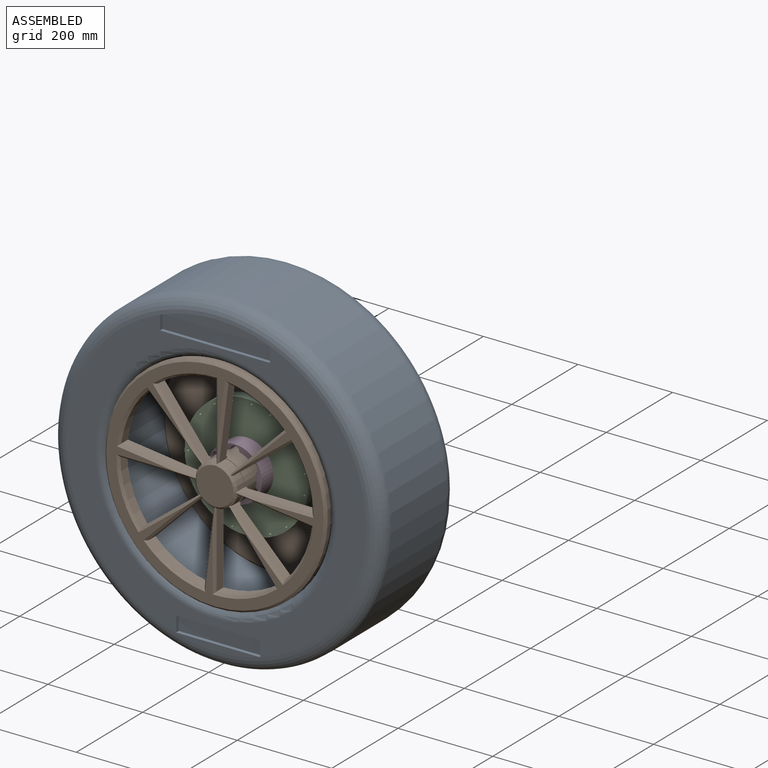
[diagram: assembled view]
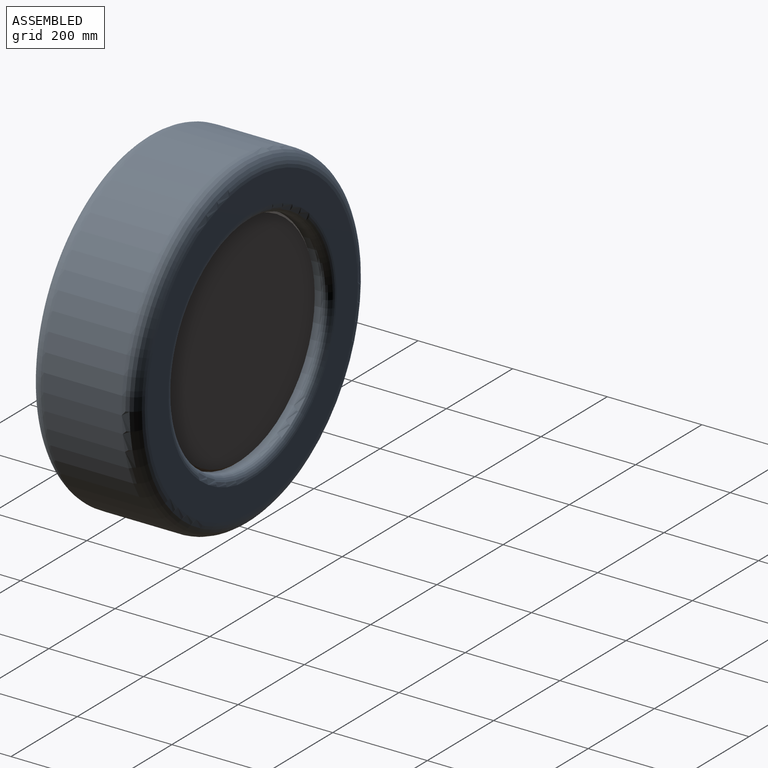
[diagram: assembled view, second angle]
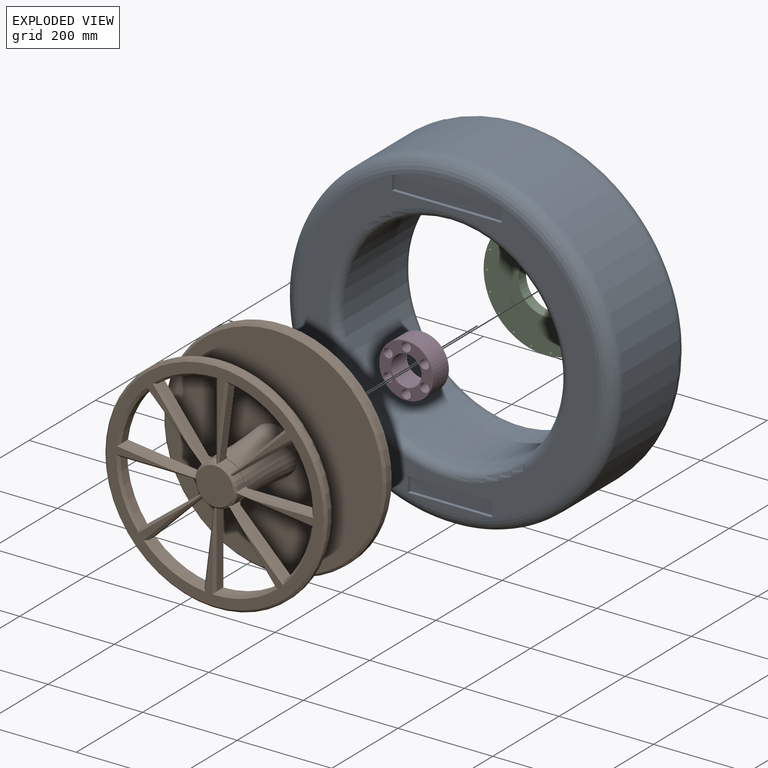
[diagram: exploded view]
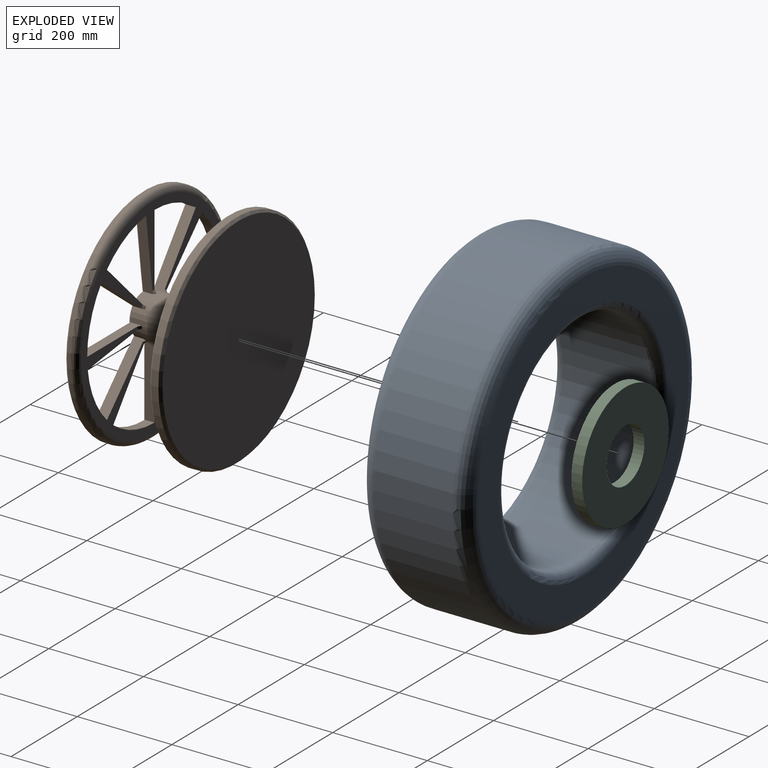
[diagram: exploded view, second angle]
ASSEMBLY  parts=4 mates=4
PART A: 29 faces, bbox 756.1x228.6x756.1 mm
  f0: plane 12.19x7.62mm, normal (0,0,-1), area 92.9mm2, adj f3,f17,f21,f22
  f1: plane 24.38x7.62mm, normal (0,0,-1), area 185.8mm2, adj f3,f17,f19,f20
  f2: plane 67.39x7.62mm, normal (0,0,-1), area 513.5mm2, adj f3,f14,f17,f18
  f3: plane 227.09x21.01mm, normal (0,-1,0), area 3200mm2, adj f0,f1,f2,f8,f13,f18,f19,f20
  f4: plane 635x635mm, normal (0,1,0), area 114009.2mm2, adj f7,f11
  f5: cylinder r=349.25mm len=698.5mm, axis (0,1,0), area 362295.8mm2, adj f7,f8
  f6: plane 635x614mm, normal (0,-1,0), area 97735.2mm2, adj f8,f10,f12,f15,f16,f24,f25,f26
  f7: torus R=317.5mm, axis (0,1,0), area 105825.6mm2, adj f4,f5
  f8: torus R=317.5mm, axis (0,1,0), area 105825.6mm2, adj f3,f5,f6,f14
  f9: cylinder r=234.95mm len=469.9mm, axis (0,-1,0), area 281222.7mm2, adj f10,f11
  f10: torus R=254mm, axis (0,1,0), area 45475.9mm2, adj f6,f9
  f11: torus R=254mm, axis (0,1,0), area 45475.9mm2, adj f4,f9
  f12: plane 31.99x7.62mm, normal (-1,0,0), area 243.7mm2, adj f6,f13,f16,f17
  f13: plane 114.39x7.62mm, normal (0,0,-1), area 871.6mm2, adj f3,f12,f17,f23
  f14: cylinder r=317.5mm len=7.62mm, axis (0,-1,0), area 41mm2, adj f2,f8,f15,f17
  f15: plane 30.02x7.62mm, normal (1,0,0), area 228.7mm2, adj f6,f14,f16,f17
  f16: plane 232.1x7.62mm, normal (0,0,1), area 1768.6mm2, adj f6,f12,f15,f17
  f17: plane 232.1x32.12mm, normal (0,-1,0), area 7419.7mm2, adj f0,f1,f2,f12,f13,f14,f15,f16
  f18: extruded ~7.62x1.43mm, area 10.9mm2, adj f2,f3,f17,f19
  f19: extruded ~7.62x1.72mm, area 13.1mm2, adj f1,f3,f17,f18
  f20: extruded ~7.62x1.45mm, area 11.1mm2, adj f1,f3,f17,f21
  f21: extruded ~7.62x1.46mm, area 11.2mm2, adj f0,f3,f17,f20
  f22: extruded ~7.62x1.37mm, area 10.5mm2, adj f0,f3,f17,f23
  f23: extruded ~7.62x1.32mm, area 10.1mm2, adj f3,f13,f17,f22
  f24: plane 31.83x7.62mm, normal (-1,0,0), area 242.5mm2, adj f6,f25,f27,f28
  f25: plane 177.64x7.62mm, normal (0,0,-1), area 1353.6mm2, adj f6,f24,f26,f28
  f26: plane 31.83x7.62mm, normal (1,0,0), area 242.5mm2, adj f6,f25,f27,f28
  f27: plane 177.64x7.62mm, normal (0,0,1), area 1353.6mm2, adj f6,f24,f26,f28
  f28: plane 177.64x31.83mm, normal (0,-1,0), area 5654.3mm2, adj f24,f25,f26,f27
PART B: 101 faces, bbox 521.2x955.7x521.2 mm
  f0: plane 78.74x78.74mm, normal (0,1,0), area 4869.5mm2, adj f53,f54,f57,f58,f63,f64,f67,f68
  f1: plane 459.74x459.74mm, normal (0,1,0), area 37810.4mm2, adj f49,f50,f51,f52,f55,f56,f59,f60
  f2: plane 444.5x444.5mm, normal (0,-1,0), area 44855mm2, adj f8,f10,f12,f13,f16,f17,f18,f20
  f3: cylinder r=234.95mm len=469.9mm, axis (0,1,0), area 22497.8mm2, adj f98,f99
  f4: plane 459.74x459.74mm, normal (0,-1,0), area 166002.4mm2, adj f99
  f5: plane 459.74x459.74mm, normal (0,1,0), area 157935.8mm2, adj f98,f100
  f6: cylinder r=45.59mm len=91.18mm, axis (0,-1,0), area 19782.7mm2, adj f9,f10,f12,f14,f16,f18,f19,f20
  f7: cylinder r=234.95mm len=469.9mm, axis (0,1,0), area 11248.9mm2, adj f8,f89
  f8: torus R=222.25mm, axis (0,-1,0), area 28871.1mm2, adj f2,f7
  f9: plane 26.68x13.8mm, normal (0,1,0), area 33.9mm2, adj f6,f10,f11,f12
  f10: plane 112.25x112.25mm, normal (-0.71,0,-0.71), area 3238.7mm2, adj f2,f6,f9,f11,f13,f52,f95
  f11: cylinder r=44.45mm len=25.87mm, axis (0,1,0), area 596.2mm2, adj f9,f10,f12,f57
  f12: plane 157.51x25.4mm, normal (0.99,0,0.12), area 3238.7mm2, adj f2,f6,f9,f11,f13,f56,f96
  f13: cylinder r=203.2mm len=118.28mm, axis (0,1,0), area 2725.4mm2, adj f2,f10,f12,f51
  f14: plane 27.97x10.49mm, normal (0,1,0), area 34mm2, adj f6,f15,f16,f18
  f15: cylinder r=44.45mm len=27.26mm, axis (0,1,0), area 596.4mm2, adj f14,f16,f18,f54
  f16: plane 125.38x97.37mm, normal (0.61,0,0.79), area 3238.7mm2, adj f2,f6,f14,f15,f17,f49,f95
  f17: cylinder r=203.2mm len=124.64mm, axis (0,1,0), area 2726.5mm2, adj f2,f16,f18,f50
  f18: plane 158.75x25.4mm, normal (0,0,-1), area 3238.7mm2, adj f2,f6,f14,f15,f17,f55,f94
  f19: plane 26.68x13.8mm, normal (0,1,0), area 33.9mm2, adj f6,f20,f21,f22
  f20: plane 112.25x112.25mm, normal (0.71,0,-0.71), area 3238.7mm2, adj f2,f6,f19,f21,f23,f65,f93
  f21: cylinder r=44.45mm len=25.87mm, axis (0,1,0), area 596.2mm2, adj f19,f20,f22,f64
  f22: plane 157.51x25.4mm, normal (-0.12,0,0.99), area 3238.7mm2, adj f2,f6,f19,f21,f23,f59,f94
  f23: cylinder r=203.2mm len=118.28mm, axis (0,1,0), area 2725.4mm2, adj f2,f20,f22,f60
  f24: plane 27.97x10.49mm, normal (0,1,0), area 34mm2, adj f6,f25,f26,f28
  f25: cylinder r=44.45mm len=27.26mm, axis (0,1,0), area 596.4mm2, adj f24,f26,f28,f67
  f26: plane 125.38x97.37mm, normal (0.79,0,-0.61), area 3238.7mm2, adj f2,f6,f24,f25,f27,f66,f97
  f27: cylinder r=203.2mm len=124.64mm, axis (0,1,0), area 2726.5mm2, adj f2,f26,f28,f61
  f28: plane 158.75x25.4mm, normal (-1,0,0), area 3238.7mm2, adj f2,f6,f24,f25,f27,f62,f96
  f29: plane 27.97x10.49mm, normal (0,1,0), area 34mm2, adj f6,f31,f32,f33
  f30: cylinder r=203.2mm len=124.64mm, axis (0,1,0), area 2726.5mm2, adj f2,f31,f33,f70
  f31: plane 158.75x25.4mm, normal (1,0,0), area 3238.7mm2, adj f2,f6,f29,f30,f32,f75,f92
  f32: cylinder r=44.45mm len=27.26mm, axis (0,1,0), area 596.4mm2, adj f29,f31,f33,f74
  f33: plane 125.38x97.37mm, normal (-0.79,0,0.61), area 3238.7mm2, adj f2,f6,f29,f30,f32,f69,f93
  f34: plane 26.68x13.8mm, normal (0,1,0), area 33.9mm2, adj f6,f35,f36,f37
  f35: plane 112.25x112.25mm, normal (0.71,0,0.71), area 3238.7mm2, adj f2,f6,f34,f36,f38,f82,f91
  f36: cylinder r=44.45mm len=25.87mm, axis (0,1,0), area 596.2mm2, adj f34,f35,f37,f86
  f37: plane 157.51x25.4mm, normal (-0.99,0,-0.12), area 3238.7mm2, adj f2,f6,f34,f36,f38,f81,f92
  f38: cylinder r=203.2mm len=118.28mm, axis (0,1,0), area 2725.4mm2, adj f2,f35,f37,f76
  f39: plane 26.68x13.8mm, normal (0,1,0), area 33.9mm2, adj f6,f40,f41,f42
  f40: plane 112.25x112.25mm, normal (-0.71,0,0.71), area 3238.7mm2, adj f2,f6,f39,f41,f43,f72,f97
  f41: cylinder r=44.45mm len=25.87mm, axis (0,1,0), area 596.2mm2, adj f39,f40,f42,f79
  f42: plane 157.51x25.4mm, normal (0.12,0,-0.99), area 3238.7mm2, adj f2,f6,f39,f41,f43,f78,f90
  f43: cylinder r=203.2mm len=118.28mm, axis (0,1,0), area 2725.4mm2, adj f2,f40,f42,f71
  f44: plane 27.97x10.49mm, normal (0,1,0), area 34mm2, adj f6,f45,f46,f47
  f45: plane 158.75x25.4mm, normal (0,0,1), area 3238.7mm2, adj f2,f6,f44,f46,f48,f84,f90
  f46: cylinder r=44.45mm len=27.26mm, axis (0,1,0), area 596.4mm2, adj f44,f45,f47,f87
  f47: plane 125.38x97.37mm, normal (-0.61,0,-0.79), area 3238.7mm2, adj f2,f6,f44,f46,f48,f83,f91
  f48: cylinder r=203.2mm len=124.64mm, axis (0,1,0), area 2726.5mm2, adj f2,f45,f47,f77
  f49: plane 130.02x104.52mm, normal (0.43,0.71,0.56), area 1104.3mm2, adj f1,f16,f50,f52,f54
  f50: cone r=208.28mm half-angle=45deg, axis (0,1,0), area 1012.2mm2, adj f1,f17,f49,f55
  f51: cone r=208.28mm half-angle=45deg, axis (0,1,0), area 1011.8mm2, adj f1,f13,f52,f56
  f52: plane 119.51x116.07mm, normal (-0.5,0.71,-0.5), area 1104.3mm2, adj f1,f10,f49,f51,f57
  f53: cone r=44.45mm half-angle=45deg, axis (0,-1,0), area 9.2mm2, adj f0,f54,f57
  f54: cone r=44.45mm half-angle=45deg, axis (0,-1,0), area 217.1mm2, adj f0,f15,f49,f53,f55,f58
  f55: plane 166.53x5.13mm, normal (0,0.71,-0.71), area 1104.7mm2, adj f1,f18,f50,f54,f59
  f56: plane 165.53x22.84mm, normal (0.7,0.71,0.09), area 1104.7mm2, adj f1,f12,f51,f57,f62
  f57: cone r=44.45mm half-angle=45deg, axis (0,-1,0), area 217mm2, adj f0,f11,f52,f53,f56,f63
  f58: cone r=44.45mm half-angle=45deg, axis (0,-1,0), area 9.1mm2, adj f0,f54,f64
  f59: plane 165.53x22.84mm, normal (-0.09,0.71,0.7), area 1104.7mm2, adj f1,f22,f55,f60,f64
  f60: cone r=208.28mm half-angle=45deg, axis (0,1,0), area 1011.8mm2, adj f1,f23,f59,f65
  f61: cone r=208.28mm half-angle=45deg, axis (0,1,0), area 1012.2mm2, adj f1,f27,f62,f66
  f62: plane 166.53x5.13mm, normal (-0.71,0.71,0), area 1104.7mm2, adj f1,f28,f56,f61,f67
  f63: cone r=44.45mm half-angle=45deg, axis (0,-1,0), area 9.1mm2, adj f0,f57,f67
  f64: cone r=44.45mm half-angle=45deg, axis (0,-1,0), area 217mm2, adj f0,f21,f58,f59,f65,f68
  f65: plane 119.51x116.07mm, normal (0.5,0.71,-0.5), area 1104.3mm2, adj f1,f20,f60,f64,f69
  f66: plane 130.02x104.52mm, normal (0.56,0.71,-0.43), area 1104.3mm2, adj f1,f26,f61,f67,f72
  f67: cone r=44.45mm half-angle=45deg, axis (0,-1,0), area 217.1mm2, adj f0,f25,f62,f63,f66,f73
  f68: cone r=44.45mm half-angle=45deg, axis (0,-1,0), area 9.2mm2, adj f0,f64,f74
  f69: plane 130.02x104.52mm, normal (-0.56,0.71,0.43), area 1104.3mm2, adj f1,f33,f65,f70,f74
  f70: cone r=208.28mm half-angle=45deg, axis (0,1,0), area 1012.2mm2, adj f1,f30,f69,f75
  f71: cone r=208.28mm half-angle=45deg, axis (0,1,0), area 1011.8mm2, adj f1,f43,f72,f78
  f72: plane 119.51x116.07mm, normal (-0.5,0.71,0.5), area 1104.3mm2, adj f1,f40,f66,f71,f79
  f73: cone r=44.45mm half-angle=45deg, axis (0,-1,0), area 9.2mm2, adj f0,f67,f79
  f74: cone r=44.45mm half-angle=45deg, axis (0,-1,0), area 217.1mm2, adj f0,f32,f68,f69,f75,f80
  f75: plane 166.53x5.13mm, normal (0.71,0.71,0), area 1104.7mm2, adj f1,f31,f70,f74,f81
  f76: cone r=208.28mm half-angle=45deg, axis (0,1,0), area 1011.8mm2, adj f1,f38,f81,f82
  f77: cone r=208.28mm half-angle=45deg, axis (0,1,0), area 1012.2mm2, adj f1,f48,f83,f84
  f78: plane 165.53x22.84mm, normal (0.09,0.71,-0.7), area 1104.7mm2, adj f1,f42,f71,f79,f84
  f79: cone r=44.45mm half-angle=45deg, axis (0,-1,0), area 217mm2, adj f0,f41,f72,f73,f78,f85
  f80: cone r=44.45mm half-angle=45deg, axis (0,-1,0), area 9.1mm2, adj f0,f74,f86
  f81: plane 165.53x22.84mm, normal (-0.7,0.71,-0.09), area 1104.7mm2, adj f1,f37,f75,f76,f86
  f82: plane 119.51x116.07mm, normal (0.5,0.71,0.5), area 1104.3mm2, adj f1,f35,f76,f83,f86
  f83: plane 130.02x104.52mm, normal (-0.43,0.71,-0.56), area 1104.3mm2, adj f1,f47,f77,f82,f87
  f84: plane 166.53x5.13mm, normal (0,0.71,0.71), area 1104.7mm2, adj f1,f45,f77,f78,f87
  f85: cone r=44.45mm half-angle=45deg, axis (0,-1,0), area 9.1mm2, adj f0,f79,f87
  f86: cone r=44.45mm half-angle=45deg, axis (0,-1,0), area 217mm2, adj f0,f36,f80,f81,f82,f88
  f87: cone r=44.45mm half-angle=45deg, axis (0,-1,0), area 217.1mm2, adj f0,f46,f83,f84,f85,f88
  f88: cone r=44.45mm half-angle=45deg, axis (0,-1,0), area 9.2mm2, adj f0,f86,f87
  f89: cone r=234.95mm half-angle=45deg, axis (0,-1,0), area 10490.9mm2, adj f1,f7
  f90: cone r=45.59mm half-angle=45deg, axis (0,1,0), area 43.3mm2, adj f2,f6,f42,f45
  f91: cone r=45.59mm half-angle=45deg, axis (0,1,0), area 43.3mm2, adj f2,f6,f35,f47
  f92: cone r=45.59mm half-angle=45deg, axis (0,1,0), area 43.3mm2, adj f2,f6,f31,f37
  f93: cone r=45.59mm half-angle=45deg, axis (0,1,0), area 43.3mm2, adj f2,f6,f20,f33
  f94: cone r=45.59mm half-angle=45deg, axis (0,1,0), area 43.3mm2, adj f2,f6,f18,f22
  f95: cone r=45.59mm half-angle=45deg, axis (0,1,0), area 43.3mm2, adj f2,f6,f10,f16
  f96: cone r=45.59mm half-angle=45deg, axis (0,1,0), area 43.3mm2, adj f2,f6,f12,f28
  f97: cone r=45.59mm half-angle=45deg, axis (0,1,0), area 43.3mm2, adj f2,f6,f26,f40
  f98: cone r=229.87mm half-angle=45deg, axis (0,-1,0), area 10490.9mm2, adj f3,f5
  f99: cone r=229.87mm half-angle=45deg, axis (0,1,0), area 10490.9mm2, adj f3,f4
  f100: torus R=718.56mm, axis (0,-1,0), area 24583mm2, adj f5,f6
PART C: 42 faces, bbox 261.7x23x261.7 mm
  f0: cylinder r=2.35mm len=11.49mm, axis (0,1,0), area 169.5mm2, adj f21,f23
  f1: cylinder r=2.35mm len=11.49mm, axis (0,1,0), area 169.5mm2, adj f21,f24
  f2: cylinder r=2.35mm len=11.49mm, axis (0,1,0), area 169.5mm2, adj f21,f25
  f3: cylinder r=2.35mm len=11.49mm, axis (0,1,0), area 169.5mm2, adj f21,f26
  f4: cylinder r=2.35mm len=11.49mm, axis (0,1,0), area 169.5mm2, adj f21,f27
  f5: cylinder r=2.35mm len=11.49mm, axis (0,1,0), area 169.5mm2, adj f21,f28
  f6: cylinder r=2.35mm len=11.49mm, axis (0,1,0), area 169.5mm2, adj f21,f29
  f7: cylinder r=2.35mm len=11.49mm, axis (0,1,0), area 169.5mm2, adj f21,f30
  f8: cylinder r=2.35mm len=11.49mm, axis (0,1,0), area 169.5mm2, adj f21,f31
  f9: cylinder r=2.35mm len=11.49mm, axis (0,1,0), area 169.5mm2, adj f21,f32
  f10: cylinder r=2.35mm len=11.49mm, axis (0,1,0), area 169.5mm2, adj f21,f33
  f11: cylinder r=2.35mm len=11.49mm, axis (0,1,0), area 169.5mm2, adj f21,f34
  f12: cylinder r=2.35mm len=11.49mm, axis (0,1,0), area 169.5mm2, adj f21,f35
  f13: cylinder r=2.35mm len=11.49mm, axis (0,1,0), area 169.5mm2, adj f21,f36
  f14: cylinder r=2.35mm len=11.49mm, axis (0,1,0), area 169.5mm2, adj f21,f37
  f15: cylinder r=2.35mm len=11.49mm, axis (0,1,0), area 169.5mm2, adj f21,f38
  f16: cylinder r=2.35mm len=11.49mm, axis (0,1,0), area 169.5mm2, adj f21,f39
  f17: cylinder r=2.35mm len=11.49mm, axis (0,1,0), area 169.5mm2, adj f21,f40
  f18: cylinder r=2.35mm len=11.49mm, axis (0,1,0), area 169.5mm2, adj f21,f41
  f19: cylinder r=57.15mm len=114.3mm, axis (0,1,0), area 8258.9mm2, adj f21,f22
  f20: cylinder r=130.85mm len=261.7mm, axis (0,1,0), area 18909.6mm2, adj f21,f22
  f21: plane 261.7x261.7mm, normal (0,-1,0), area 43199.7mm2, adj f0,f1,f2,f3,f4,f5,f6,f7
  f22: plane 261.7x261.7mm, normal (0,1,0), area 43528.7mm2, adj f19,f20
  f23: plane 4.7x4.7mm, normal (0,-1,0), area 17.3mm2, adj f0
  f24: plane 4.7x4.7mm, normal (0,-1,0), area 17.3mm2, adj f1
  f25: plane 4.7x4.7mm, normal (0,-1,0), area 17.3mm2, adj f2
  f26: plane 4.7x4.7mm, normal (0,-1,0), area 17.3mm2, adj f3
  f27: plane 4.7x4.7mm, normal (0,-1,0), area 17.3mm2, adj f4
  f28: plane 4.7x4.7mm, normal (0,-1,0), area 17.3mm2, adj f5
  f29: plane 4.7x4.7mm, normal (0,-1,0), area 17.3mm2, adj f6
  f30: plane 4.7x4.7mm, normal (0,-1,0), area 17.3mm2, adj f7
  f31: plane 4.7x4.7mm, normal (0,-1,0), area 17.3mm2, adj f8
  f32: plane 4.7x4.7mm, normal (0,-1,0), area 17.3mm2, adj f9
  f33: plane 4.7x4.7mm, normal (0,-1,0), area 17.3mm2, adj f10
  f34: plane 4.7x4.7mm, normal (0,-1,0), area 17.3mm2, adj f11
  f35: plane 4.7x4.7mm, normal (0,-1,0), area 17.3mm2, adj f12
  f36: plane 4.7x4.7mm, normal (0,-1,0), area 17.3mm2, adj f13
  f37: plane 4.7x4.7mm, normal (0,-1,0), area 17.3mm2, adj f14
  f38: plane 4.7x4.7mm, normal (0,-1,0), area 17.3mm2, adj f15
  f39: plane 4.7x4.7mm, normal (0,-1,0), area 17.3mm2, adj f16
  f40: plane 4.7x4.7mm, normal (0,-1,0), area 17.3mm2, adj f17
  f41: plane 4.7x4.7mm, normal (0,-1,0), area 17.3mm2, adj f18
PART D: 40 faces, bbox 114.1x47.3x114.1 mm
  f0: plane 114.12x114.12mm, normal (0,1,0), area 4119.8mm2, adj f1,f2,f3,f4,f5,f6,f7,f8
  f1: cylinder r=9.53mm len=47.3mm, axis (0,1,0), area 2830.8mm2, adj f0,f9
  f2: cylinder r=9.53mm len=47.3mm, axis (0,1,0), area 2830.8mm2, adj f0,f9
  f3: cylinder r=9.53mm len=47.3mm, axis (0,1,0), area 2830.8mm2, adj f0,f9
  f4: cylinder r=9.53mm len=47.3mm, axis (0,1,0), area 2830.8mm2, adj f0,f9
  f5: cylinder r=32.15mm len=64.3mm, axis (0,1,0), area 9554.8mm2, adj f0,f9
  f6: cylinder r=9.53mm len=47.3mm, axis (0,1,0), area 2830.8mm2, adj f0,f9
  f7: cylinder r=9.53mm len=47.3mm, axis (0,1,0), area 2830.8mm2, adj f0,f9
  f8: cylinder r=57.06mm len=114.12mm, axis (0,1,0), area 16957.2mm2, adj f0,f9
  f9: plane 114.12x114.12mm, normal (0,-1,0), area 5270.3mm2, adj f1,f2,f3,f4,f5,f6,f7,f8
  f10: cylinder r=50.71mm len=40.95mm, axis (0,1,0), area 846.3mm2, adj f0,f11,f12,f13
  f11: cylinder r=15.88mm len=40.95mm, axis (0,1,0), area 519.1mm2, adj f0,f10,f12,f14
  f12: plane 20.1x18.26mm, normal (0,1,0), area 181.7mm2, adj f10,f11,f13,f14
  f13: cylinder r=15.88mm len=40.95mm, axis (0,1,0), area 519.3mm2, adj f0,f10,f12,f14
  f14: cylinder r=38.5mm len=40.95mm, axis (0,1,0), area 511.7mm2, adj f0,f11,f12,f13
  f15: cylinder r=15.88mm len=40.95mm, axis (0,1,0), area 519.3mm2, adj f0,f16,f17,f18
  f16: plane 23.72x12.96mm, normal (0,1,0), area 216.7mm2, adj f15,f17,f18,f19
  f17: cylinder r=38.5mm len=40.95mm, axis (0,1,0), area 612.3mm2, adj f0,f15,f16,f19
  f18: cylinder r=50.71mm len=40.95mm, axis (0,1,0), area 980.6mm2, adj f0,f15,f16,f19
  f19: cylinder r=15.88mm len=40.95mm, axis (0,1,0), area 519.4mm2, adj f0,f16,f17,f18
  f20: plane 19.75x18.03mm, normal (0,1,0), area 176.7mm2, adj f21,f22,f23,f24
  f21: cylinder r=15.88mm len=40.95mm, axis (0,1,0), area 519.4mm2, adj f0,f20,f22,f24
  f22: cylinder r=50.71mm len=40.95mm, axis (0,1,0), area 827.6mm2, adj f0,f20,f21,f23
  f23: cylinder r=15.88mm len=40.95mm, axis (0,1,0), area 519.1mm2, adj f0,f20,f22,f24
  f24: cylinder r=38.5mm len=40.95mm, axis (0,1,0), area 496.7mm2, adj f0,f20,f21,f23
  f25: cylinder r=38.5mm len=40.95mm, axis (0,1,0), area 541.2mm2, adj f0,f26,f27,f29
  f26: cylinder r=15.88mm len=40.95mm, axis (0,1,0), area 519.1mm2, adj f0,f25,f27,f28
  f27: plane 20.79x18.72mm, normal (0,1,0), area 191.8mm2, adj f25,f26,f28,f29
  f28: cylinder r=50.71mm len=40.95mm, axis (0,1,0), area 884.4mm2, adj f0,f26,f27,f29
  f29: cylinder r=15.88mm len=40.95mm, axis (0,1,0), area 519.1mm2, adj f0,f25,f27,f28
  f30: cylinder r=15.88mm len=40.95mm, axis (0,1,0), area 519.1mm2, adj f0,f31,f32,f33
  f31: cylinder r=50.71mm len=40.95mm, axis (0,1,0), area 884.4mm2, adj f0,f30,f33,f34
  f32: cylinder r=38.5mm len=40.95mm, axis (0,1,0), area 541.2mm2, adj f0,f30,f33,f34
  f33: plane 20.79x18.72mm, normal (0,1,0), area 191.8mm2, adj f30,f31,f32,f34
  f34: cylinder r=15.88mm len=40.95mm, axis (0,1,0), area 519.1mm2, adj f0,f31,f32,f33
  f35: cylinder r=15.88mm len=40.95mm, axis (0,1,0), area 519.1mm2, adj f0,f36,f37,f39
  f36: plane 21.43x12.77mm, normal (0,1,0), area 191.8mm2, adj f35,f37,f38,f39
  f37: cylinder r=50.71mm len=40.95mm, axis (0,1,0), area 884.4mm2, adj f0,f35,f36,f38
  f38: cylinder r=15.88mm len=40.95mm, axis (0,1,0), area 519.1mm2, adj f0,f36,f37,f39
  f39: cylinder r=38.5mm len=40.95mm, axis (0,1,0), area 541.2mm2, adj f0,f35,f36,f38
PLACE A t=(-330.25,109.14,3.68)mm
PLACE B rot(axis=(-0.71,0,-0.71),180deg) t=(19,-8.82,3.68)mm
PLACE C rot(axis=(0.4,0.68,-0.61),0deg) t=(19,109.45,3.68)mm
PLACE D rot(axis=(0,-1,0),90deg) t=(19,98.81,3.68)mm
MATE cylindrical B.f6 <-> D.f8  axis (0,1,0) through (19,86.45,3.68)mm
MATE cylindrical B.f3 <-> A.f9  axis (0,-1,0) through (19,-3.74,3.68)mm
MATE cylindrical D.f8 <-> B.f6  axis (0,-1,0) through (19,51.51,3.68)mm
MATE cylindrical C.f20 <-> B.f6  axis (0,-1,0) through (19,86.45,3.68)mm
